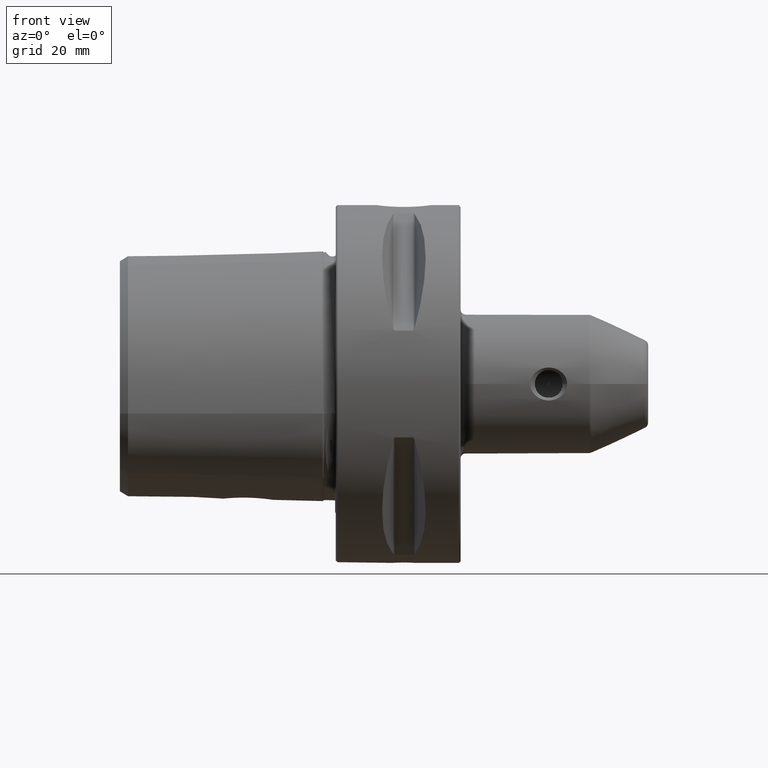
[diagram: clean part render]
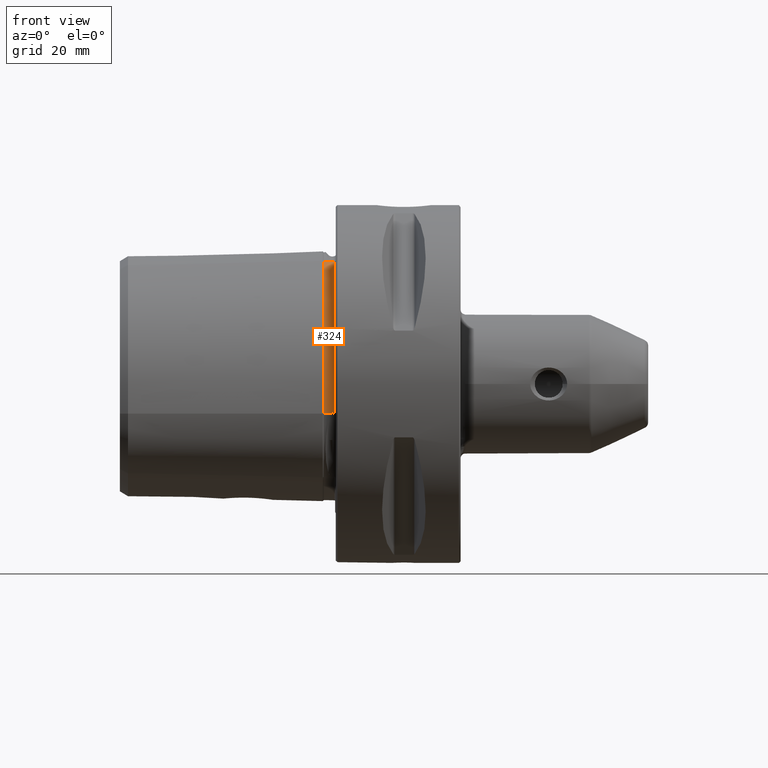
[diagram: same view with one face highlighted and labeled with its STEP entity id]
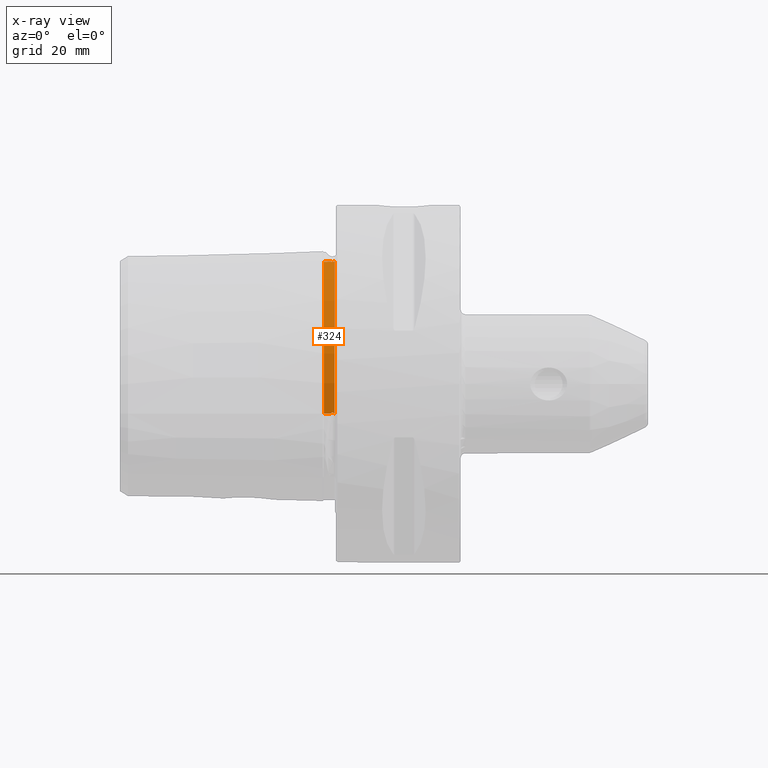
[diagram: x-ray of the same camera — body ghosted, the highlighted face saturated]
A machine part, front view. The second image highlights one B-rep face of the part: STEP entity #324.
The next image is the same camera in x-ray: the body ghosted, the highlighted face saturated — about 0% of this face is hidden behind the body in this view.
In plain terms, the highlighted conical surface has half-angle 1.432 deg.
Its self-contained STEP definition (entity closure, byte-faithful):
#324 = ADVANCED_FACE( '', ( #698 ), #699, .T. );
#698 = FACE_OUTER_BOUND( '', #1079, .T. );
#699 = CONICAL_SURFACE( '', #1080, 30.9346390471454, 0.0249969933592231 );
#1079 = EDGE_LOOP( '', ( #1882, #1883, #1884, #1885, #1886, #1887, #1888, #1889 ) );
#1080 = AXIS2_PLACEMENT_3D( '', #1890, #1891, #1892 );
#1882 = ORIENTED_EDGE( '', *, *, #2260, .T. );
#1883 = ORIENTED_EDGE( '', *, *, #2032, .T. );
#1884 = ORIENTED_EDGE( '', *, *, #1979, .T. );
#1885 = ORIENTED_EDGE( '', *, *, #2279, .F. );
#1886 = ORIENTED_EDGE( '', *, *, #2225, .F. );
#1887 = ORIENTED_EDGE( '', *, *, #2040, .T. );
#1888 = ORIENTED_EDGE( '', *, *, #2188, .F. );
#1889 = ORIENTED_EDGE( '', *, *, #2137, .T. );
#1890 = CARTESIAN_POINT( '', ( -0.200000000000004, 9.04974226119300, -5.22487113059656 ) );
#1891 = DIRECTION( '', ( 1.00000000000000, -6.12303176911189E-017, 0.000000000000000 ) );
#1892 = DIRECTION( '', ( 6.12303176911189E-017, 1.00000000000000, 0.000000000000000 ) );
#1979 = EDGE_CURVE( '', #2303, #2304, #2305, .F. );
#2032 = EDGE_CURVE( '', #2391, #2303, #2392, .T. );
#2040 = EDGE_CURVE( '', #2407, #2405, #2408, .T. );
#2137 = EDGE_CURVE( '', #2548, #2550, #2552, .T. );
#2188 = EDGE_CURVE( '', #2548, #2405, #2627, .F. );
#2225 = EDGE_CURVE( '', #2407, #2458, #2674, .F. );
#2260 = EDGE_CURVE( '', #2550, #2391, #2719, .F. );
#2279 = EDGE_CURVE( '', #2458, #2304, #2740, .T. );
#2303 = VERTEX_POINT( '', #2768 );
#2304 = VERTEX_POINT( '', #2769 );
#2305 = LINE( '', #2770, #2771 );
#2391 = VERTEX_POINT( '', #2983 );
#2392 = B_SPLINE_CURVE_WITH_KNOTS( '', 3, ( #2984, #2985, #2986, #2987, #2988, #2989, #2990, #2991, #2992, #2993 ), .UNSPECIFIED., .F., .F., ( 4, 2, 2, 2, 4 ), ( 5.50449193688651E-006, 0.000176609773375766, 0.000347715054814645, 0.000518820336253525, 0.000689925617692404 ), .UNSPECIFIED. );
#2405 = VERTEX_POINT( '', #3021 );
#2407 = VERTEX_POINT( '', #3026 );
#2408 = B_SPLINE_CURVE_WITH_KNOTS( '', 3, ( #3027, #3028, #3029, #3030, #3031, #3032, #3033, #3034, #3035, #3036 ), .UNSPECIFIED., .F., .F., ( 4, 2, 2, 2, 4 ), ( 2.54039301904537E-007, 0.000171251386120463, 0.000342248732939021, 0.000513246079757579, 0.000684243426576137 ), .UNSPECIFIED. );
#2458 = VERTEX_POINT( '', #3186 );
#2548 = VERTEX_POINT( '', #3493 );
#2550 = VERTEX_POINT( '', #3496 );
#2552 = CIRCLE( '', #3499, 30.9346390471454 );
#2627 = LINE( '', #3762, #3763 );
#2674 = LINE( '', #3863, #3864 );
#2719 = LINE( '', #3979, #3980 );
#2740 = CIRCLE( '', #4003, 30.8871348650264 );
#2768 = CARTESIAN_POINT( '', ( -0.858338698627416, -6.40934730410735, 21.5510574352611 ) );
#2769 = CARTESIAN_POINT( '', ( -2.10000000000000, -6.39382517132037, 21.5241723126322 ) );
#2770 = CARTESIAN_POINT( '', ( -2.10000000000000, -6.39382517132037, 21.5241723126322 ) );
#2771 = VECTOR( '', #4023, 1000.00000000000 );
#2983 = CARTESIAN_POINT( '', ( -0.295009076412013, -6.41638954435876, 21.5632549531828 ) );
#2984 = CARTESIAN_POINT( '', ( -0.295009076412429, -6.41638954435829, 21.5632549531829 ) );
#2985 = CARTESIAN_POINT( '', ( -0.330422607143650, -6.45502652312345, 21.5399254925090 ) );
#2986 = CARTESIAN_POINT( '', ( -0.369960017324095, -6.49075596885605, 21.5180345346186 ) );
#2987 = CARTESIAN_POINT( '', ( -0.463882918246440, -6.54645530362871, 21.4828702434917 ) );
#2988 = CARTESIAN_POINT( '', ( -0.519173841883227, -6.56526389759823, 21.4702561317978 ) );
#2989 = CARTESIAN_POINT( '', ( -0.634460007678745, -6.56331630633826, 21.4680560389180 ) );
#2990 = CARTESIAN_POINT( '', ( -0.689235676329736, -6.54291832096630, 21.4784110742332 ) );
#2991 = CARTESIAN_POINT( '', ( -0.783285021784889, -6.48480886955839, 21.5095382854829 ) );
#2992 = CARTESIAN_POINT( '', ( -0.822749056262284, -6.44848574188975, 21.5294883226074 ) );
#2993 = CARTESIAN_POINT( '', ( -0.858338698627025, -6.40934730410703, 21.5510574352613 ) );
#3021 = CARTESIAN_POINT( '', ( -0.295009076413985, -21.8825213499163, -5.22487113059719 ) );
#3026 = CARTESIAN_POINT( '', ( -0.858338698628725, -21.8684368694073, -5.22487113059877 ) );
#3027 = CARTESIAN_POINT( '', ( -0.858338698633301, -21.8684368694073, -5.22487113059419 ) );
#3028 = CARTESIAN_POINT( '', ( -0.822598605269319, -21.8693304504095, -5.18000281584917 ) );
#3029 = CARTESIAN_POINT( '', ( -0.782944476912852, -21.8702185898332, -5.13845023482225 ) );
#3030 = CARTESIAN_POINT( '', ( -0.688890461243429, -21.8723165035557, -5.07270184408453 ) );
#3031 = CARTESIAN_POINT( '', ( -0.634087444822257, -21.8735486145032, -5.04989635226999 ) );
#3032 = CARTESIAN_POINT( '', ( -0.518496888388406, -21.8764368401003, -5.04957161645667 ) );
#3033 = CARTESIAN_POINT( '', ( -0.463670657098602, -21.8779449007825, -5.07215515851545 ) );
#3034 = CARTESIAN_POINT( '', ( -0.369869834958819, -21.8805450426606, -5.13795312379694 ) );
#3035 = CARTESIAN_POINT( '', ( -0.330407189757605, -21.8816363191673, -5.17976544056547 ) );
#3036 = CARTESIAN_POINT( '', ( -0.295009076409797, -21.8825213499163, -5.22487113059305 ) );
#3186 = CARTESIAN_POINT( '', ( -2.10000000000000, -21.8373926038336, -5.22487113059656 ) );
#3493 = CARTESIAN_POINT( '', ( -0.200000000000006, -21.8848967859527, -5.22487113059657 ) );
#3496 = CARTESIAN_POINT( '', ( -0.200000000000005, -6.41757726237987, 21.5653121411333 ) );
#3499 = AXIS2_PLACEMENT_3D( '', #4195, #4196, #4197 );
#3762 = CARTESIAN_POINT( '', ( -2.10000000000000, -21.8373926038336, -5.22487113059657 ) );
#3763 = VECTOR( '', #4243, 1000.00000000000 );
#3863 = CARTESIAN_POINT( '', ( -2.10000000000000, -21.8373926038336, -5.22487113059657 ) );
#3864 = VECTOR( '', #4285, 1000.00000000000 );
#3979 = CARTESIAN_POINT( '', ( -2.10000000000000, -6.39382517132037, 21.5241723126322 ) );
#3980 = VECTOR( '', #4321, 1000.00000000000 );
#4003 = AXIS2_PLACEMENT_3D( '', #4339, #4340, #4341 );
#4023 = DIRECTION( '', ( 0.999687591429374, -0.0124971951066745, 0.0216457768768611 ) );
#4195 = CARTESIAN_POINT( '', ( -0.200000000000004, 9.04974226119300, -5.22487113059656 ) );
#4196 = DIRECTION( '', ( -1.00000000000000, 6.12303176911189E-017, -7.32167664126374E-049 ) );
#4197 = DIRECTION( '', ( -6.12303176911189E-017, -1.00000000000000, -5.60770556699573E-017 ) );
#4243 = DIRECTION( '', ( 0.999687591429374, -0.0249943902133488, 8.42169628833447E-017 ) );
#4285 = DIRECTION( '', ( 0.999687591429374, -0.0249943902133488, 8.42169628833447E-017 ) );
#4321 = DIRECTION( '', ( 0.999687591429374, -0.0124971951066745, 0.0216457768768611 ) );
#4339 = CARTESIAN_POINT( '', ( -2.10000000000000, 9.04974226119300, -5.22487113059656 ) );
#4340 = DIRECTION( '', ( -1.00000000000000, 6.12303176911189E-017, 0.000000000000000 ) );
#4341 = DIRECTION( '', ( -6.12303176911189E-017, -1.00000000000000, -5.61633017616354E-017 ) );